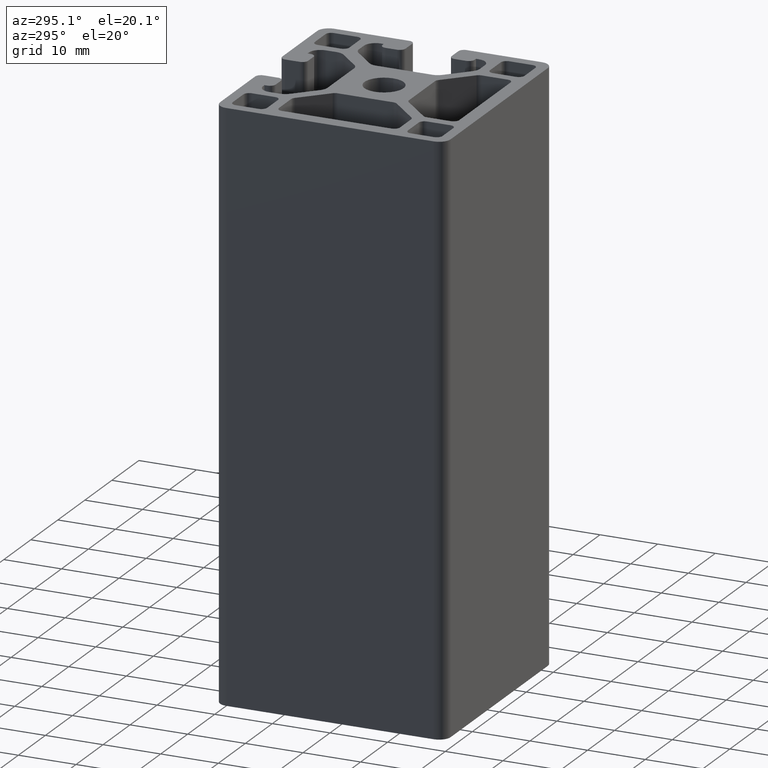
[diagram: clean part render]
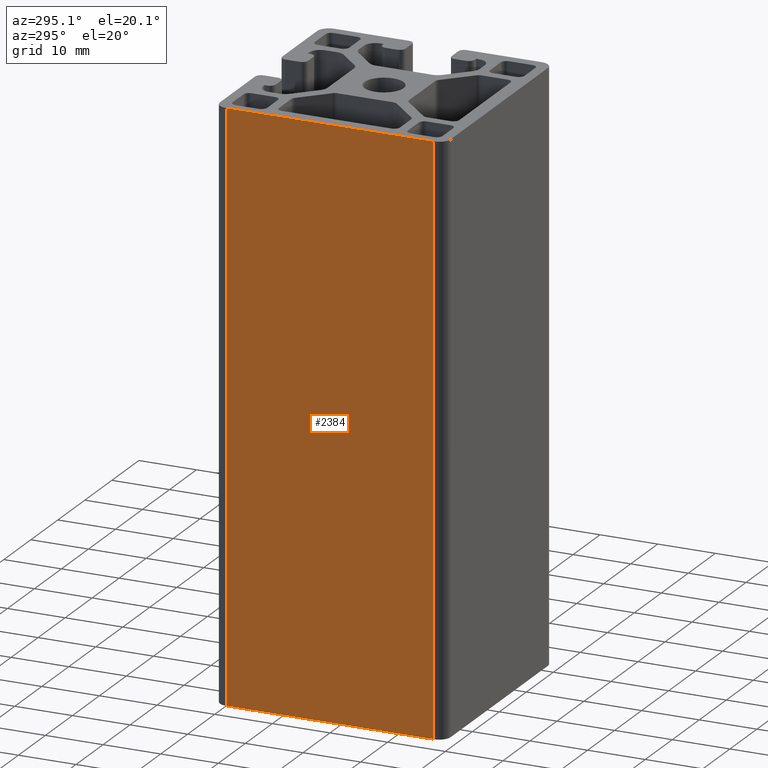
[diagram: same view with one face highlighted and labeled with its STEP entity id]
A machine part, auxiliary view. The second image highlights one B-rep face of the part: STEP entity #2384.
In plain terms, the highlighted planar face has unit normal (-1, 0, 0).
Its self-contained STEP definition (entity closure, byte-faithful):
#313=FACE_OUTER_BOUND('',#440,.T.);
#440=EDGE_LOOP('',(#2069,#2070,#2071,#2072));
#679=LINE('',#4000,#915);
#682=LINE('',#4011,#918);
#684=LINE('',#4017,#920);
#685=LINE('',#4018,#921);
#915=VECTOR('',#3289,36.);
#918=VECTOR('',#3300,100.);
#920=VECTOR('',#3306,100.);
#921=VECTOR('',#3307,36.);
#1150=VERTEX_POINT('',#3997);
#1151=VERTEX_POINT('',#3999);
#1155=VERTEX_POINT('',#4010);
#1157=VERTEX_POINT('',#4016);
#1492=EDGE_CURVE('',#1151,#1150,#679,.T.);
#1498=EDGE_CURVE('',#1155,#1151,#682,.T.);
#1501=EDGE_CURVE('',#1157,#1150,#684,.T.);
#1502=EDGE_CURVE('',#1155,#1157,#685,.T.);
#2069=ORIENTED_EDGE('',*,*,#1492,.T.);
#2070=ORIENTED_EDGE('',*,*,#1501,.F.);
#2071=ORIENTED_EDGE('',*,*,#1502,.F.);
#2072=ORIENTED_EDGE('',*,*,#1498,.T.);
#2268=PLANE('',#2616);
#2384=ADVANCED_FACE('',(#313),#2268,.T.);
#2616=AXIS2_PLACEMENT_3D('',#4015,#3304,#3305);
#3289=DIRECTION('',(0.,1.,0.));
#3300=DIRECTION('',(0.,0.,1.));
#3304=DIRECTION('center_axis',(-1.,0.,0.));
#3305=DIRECTION('ref_axis',(0.,-1.,0.));
#3306=DIRECTION('',(0.,0.,1.));
#3307=DIRECTION('',(0.,1.,0.));
#3997=CARTESIAN_POINT('',(-20.,18.,100.));
#3999=CARTESIAN_POINT('',(-20.,-18.,100.));
#4000=CARTESIAN_POINT('',(-20.,9.,100.));
#4010=CARTESIAN_POINT('',(-20.,-18.,0.));
#4011=CARTESIAN_POINT('',(-20.,-18.,0.));
#4015=CARTESIAN_POINT('Origin',(-20.,18.,0.));
#4016=CARTESIAN_POINT('',(-20.,18.,0.));
#4017=CARTESIAN_POINT('',(-20.,18.,0.));
#4018=CARTESIAN_POINT('',(-20.,9.,0.));